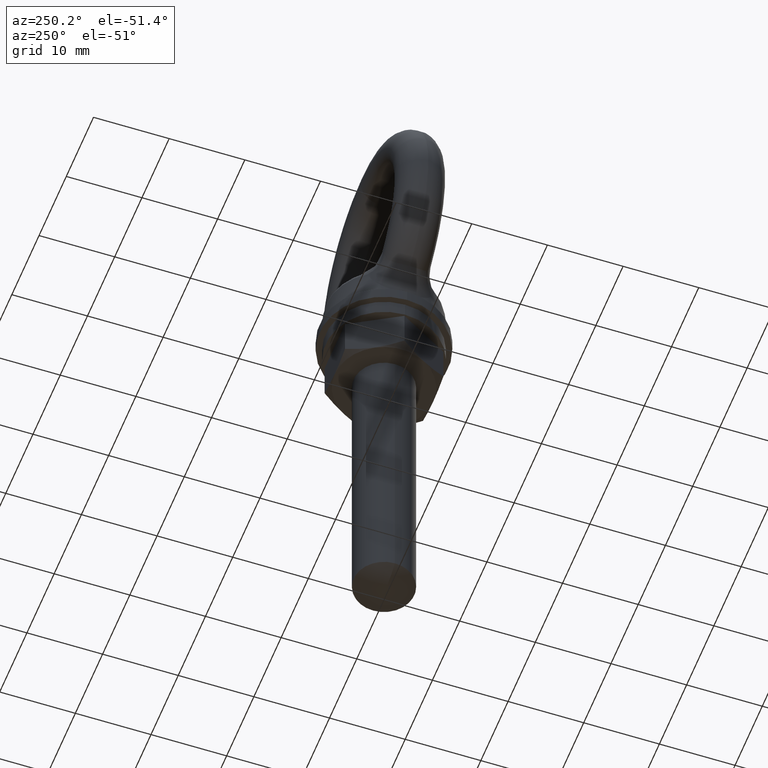
[diagram: clean part render]
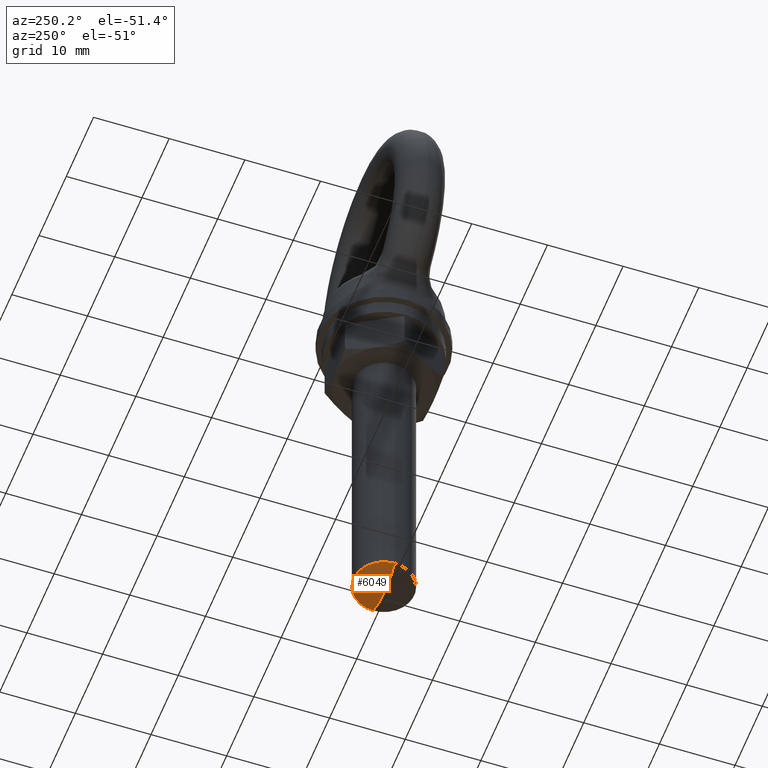
[diagram: same view with one face highlighted and labeled with its STEP entity id]
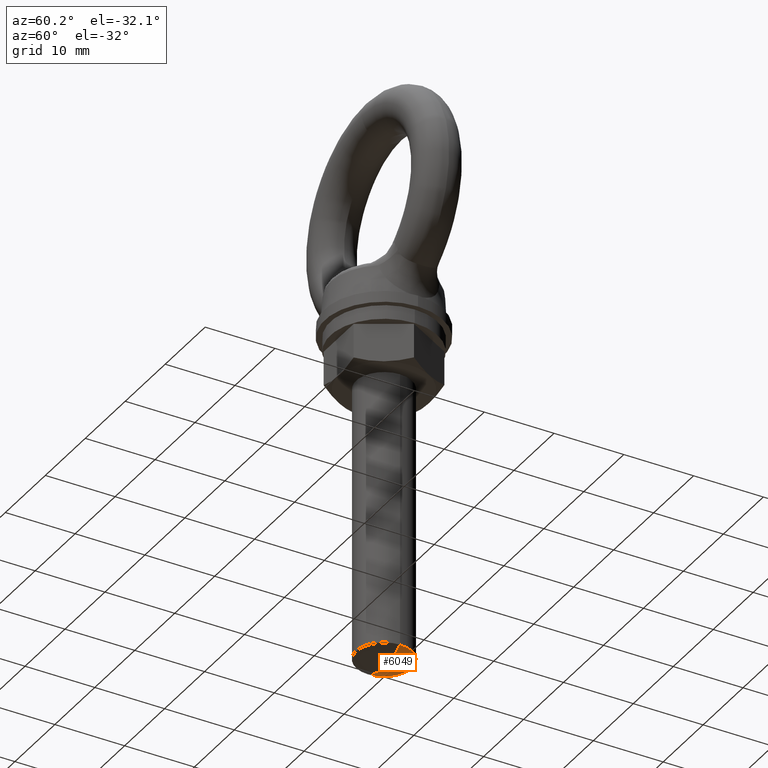
[diagram: same view with one face highlighted and labeled with its STEP entity id]
A machine part, auxiliary view. The second image highlights one B-rep face of the part: STEP entity #6049.
A second angle (auxiliary view) of the same face is appended — the face is thin or edge-on in the first view.
In plain terms, the highlighted spherical surface has radius 7.2667 mm.
Its self-contained STEP definition (entity closure, byte-faithful):
#6007 = EDGE_LOOP ( 'NONE', ( #6050, #6054, #6157 ) ) ;
#6049 = ADVANCED_FACE ( 'NONE', ( #7059 ), #7056, .T. ) ;
#6050 = ORIENTED_EDGE ( 'NONE', *, *, #6051, .T. ) ;
#6051 = EDGE_CURVE ( 'NONE', #6052, #6053, #7038, .T. ) ;
#6052 = VERTEX_POINT ( 'NONE', #7033 ) ;
#6053 = VERTEX_POINT ( 'NONE', #7032 ) ;
#6054 = ORIENTED_EDGE ( 'NONE', *, *, #6055, .T. ) ;
#6055 = EDGE_CURVE ( 'NONE', #6053, #6144, #7031, .T. ) ;
#6144 = VERTEX_POINT ( 'NONE', #7555 ) ;
#6157 = ORIENTED_EDGE ( 'NONE', *, *, #6158, .F. ) ;
#6158 = EDGE_CURVE ( 'NONE', #6052, #6144, #7507, .T. ) ;
#7027 = DIRECTION ( 'NONE',  ( -1.000000000000000000, -1.224606353822377500E-016, 0.0000000000000000000 ) ) ;
#7028 = DIRECTION ( 'NONE',  ( -1.224606353822377300E-016, 1.000000000000000000, 0.0000000000000000000 ) ) ;
#7029 = CARTESIAN_POINT ( 'NONE',  ( 0.0000000000000000000, 0.0000000000000000000, -59.73333699999999900 ) ) ;
#7030 = AXIS2_PLACEMENT_3D ( 'NONE', #7029, #7028, #7027 ) ;
#7031 = CIRCLE ( 'NONE', #7030, 7.266667000000000000 ) ;
#7032 = CARTESIAN_POINT ( 'NONE',  ( 4.000000028050884300, 0.0000000000000000000, -65.80000404743898900 ) ) ;
#7033 = CARTESIAN_POINT ( 'NONE',  ( -4.000000028050884300, 4.898425449640799300E-016, -65.80000404743898900 ) ) ;
#7034 = DIRECTION ( 'NONE',  ( -1.000000000000000000, 0.0000000000000000000, 0.0000000000000000000 ) ) ;
#7035 = DIRECTION ( 'NONE',  ( 0.0000000000000000000, 0.0000000000000000000, -1.000000000000000000 ) ) ;
#7036 = CARTESIAN_POINT ( 'NONE',  ( 0.0000000000000000000, 0.0000000000000000000, -65.80000404743898900 ) ) ;
#7037 = AXIS2_PLACEMENT_3D ( 'NONE', #7036, #7035, #7034 ) ;
#7038 = CIRCLE ( 'NONE', #7037, 4.000000028050884300 ) ;
#7039 = DIRECTION ( 'NONE',  ( -1.000000000000000000, 0.0000000000000000000, 0.0000000000000000000 ) ) ;
#7040 = DIRECTION ( 'NONE',  ( 0.0000000000000000000, 1.000000000000000000, 0.0000000000000000000 ) ) ;
#7055 = AXIS2_PLACEMENT_3D ( 'NONE', #7057, #7040, #7039 ) ;
#7056 = SPHERICAL_SURFACE ( 'NONE', #7055, 7.266667000000000000 ) ;
#7057 = CARTESIAN_POINT ( 'NONE',  ( 0.0000000000000000000, 0.0000000000000000000, -59.73333699999999900 ) ) ;
#7059 = FACE_OUTER_BOUND ( 'NONE', #6007, .T. ) ;
#7503 = DIRECTION ( 'NONE',  ( 0.0000000000000000000, 0.0000000000000000000, -1.000000000000000000 ) ) ;
#7504 = DIRECTION ( 'NONE',  ( 0.0000000000000000000, -1.000000000000000000, 0.0000000000000000000 ) ) ;
#7505 = CARTESIAN_POINT ( 'NONE',  ( 0.0000000000000000000, 0.0000000000000000000, -59.73333699999999900 ) ) ;
#7506 = AXIS2_PLACEMENT_3D ( 'NONE', #7505, #7504, #7503 ) ;
#7507 = CIRCLE ( 'NONE', #7506, 7.266667000000004400 ) ;
#7555 = CARTESIAN_POINT ( 'NONE',  ( -4.449403289655696800E-016, 0.0000000000000000000, -67.00000400000000400 ) ) ;